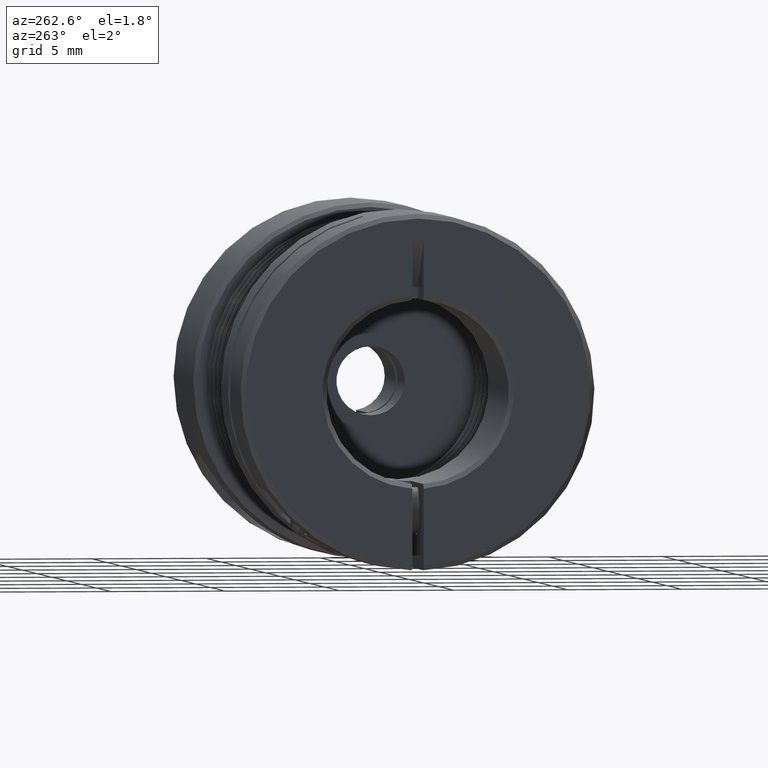
[diagram: clean part render]
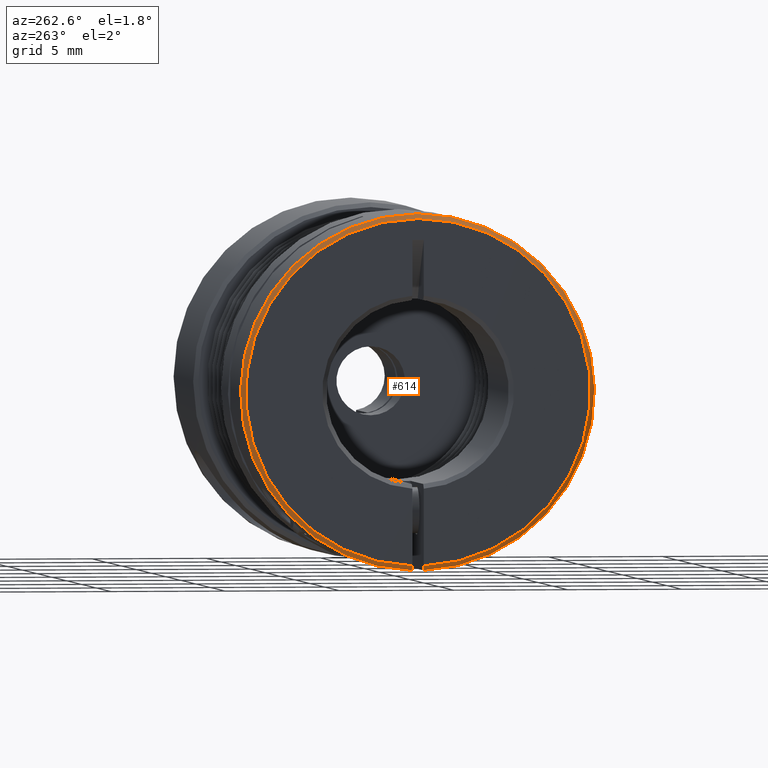
[diagram: same view with one face highlighted and labeled with its STEP entity id]
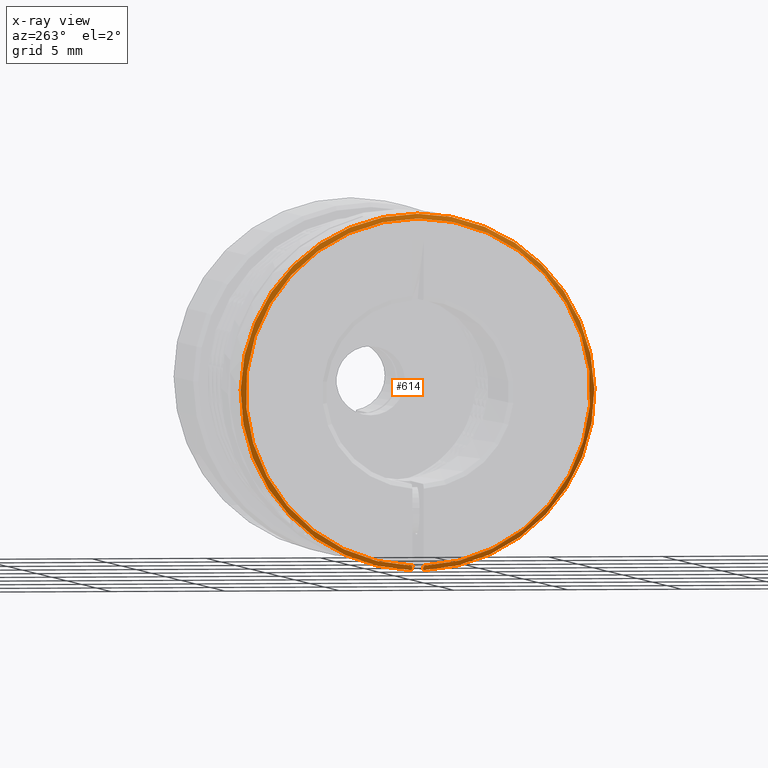
[diagram: x-ray of the same camera — body ghosted, the highlighted face saturated]
A machine part, auxiliary view. The second image highlights one B-rep face of the part: STEP entity #614.
The next image is the same camera in x-ray: the body ghosted, the highlighted face saturated — about 0% of this face is hidden behind the body in this view.
In plain terms, the highlighted conical surface has half-angle 45 deg.
Its self-contained STEP definition (entity closure, byte-faithful):
#123 = CARTESIAN_POINT ( 'NONE',  ( -0.9002624853077725309, -0.009842519685039373412, -0.3023332618965798857 ) ) ;
#212 = CARTESIAN_POINT ( 'NONE',  ( -0.8976377952755906220, -0.009842519685039328309, -0.3049593185990092103 ) ) ;
#315 = VERTEX_POINT ( 'NONE', #17194 ) ;
#376 = CARTESIAN_POINT ( 'NONE',  ( -0.9028871577040713525, 0.009842519685039366473, -0.2997071875673073538 ) ) ;
#614 = ADVANCED_FACE ( 'NONE', ( #2235 ), #8463, .T. ) ;
#1118 = CARTESIAN_POINT ( 'NONE',  ( -0.9055118110236221041, -0.009842519685039375146, -0.2970810941718658449 ) ) ;
#1274 = DIRECTION ( 'NONE',  ( 1.000000000000000000, 2.775557561562892584E-17, -1.550701171185240690E-17 ) ) ;
#1345 = ORIENTED_EDGE ( 'NONE', *, *, #2289, .T. ) ;
#1689 = CARTESIAN_POINT ( 'NONE',  ( -0.9028871577040713525, -0.009842519685039375146, -0.2997071875673073538 ) ) ;
#2103 = AXIS2_PLACEMENT_3D ( 'NONE', #5607, #15073, #7084 ) ;
#2185 = ORIENTED_EDGE ( 'NONE', *, *, #4774, .T. ) ;
#2235 = FACE_OUTER_BOUND ( 'NONE', #4315, .T. ) ;
#2289 = EDGE_CURVE ( 'NONE', #4445, #17354, #19413, .T. ) ;
#2947 = CARTESIAN_POINT ( 'NONE',  ( -0.9055118110236221041, -2.513300154171123172E-17, 1.404178225876399205E-17 ) ) ;
#3324 = DIRECTION ( 'NONE',  ( 1.000000000000000000, 2.775557561562892584E-17, -1.550701171185240690E-17 ) ) ;
#4315 = EDGE_LOOP ( 'NONE', ( #1345, #2185, #10178, #15709, #10748 ) ) ;
#4445 = VERTEX_POINT ( 'NONE', #8350 ) ;
#4492 = AXIS2_PLACEMENT_3D ( 'NONE', #15455, #18811, #8818 ) ;
#4774 = EDGE_CURVE ( 'NONE', #17354, #16888, #6594, .T. ) ;
#4992 = CARTESIAN_POINT ( 'NONE',  ( -0.9002624853077725309, 0.009842519685039368207, -0.3023332618965798857 ) ) ;
#5607 = CARTESIAN_POINT ( 'NONE',  ( -0.8976377952755906220, -2.491445370221809414E-17, 1.391967980433995645E-17 ) ) ;
#6016 = EDGE_CURVE ( 'NONE', #315, #4445, #20145, .T. ) ;
#6594 = B_SPLINE_CURVE_WITH_KNOTS ( 'NONE', 3,
 ( #16100, #1689, #123, #13044 ),
 .UNSPECIFIED., .F., .F.,
 ( 4, 4 ),
 ( 0.0000000000000000000, 0.0002829183126053914465 ),
 .UNSPECIFIED. ) ;
#7084 = DIRECTION ( 'NONE',  ( 0.0000000000000000000, 7.427073164652317819E-17, -1.000000000000000000 ) ) ;
#8235 = CARTESIAN_POINT ( 'NONE',  ( -0.8976377952755906220, 0.009842519685039359534, -0.3049593185990092103 ) ) ;
#8350 = CARTESIAN_POINT ( 'NONE',  ( -0.9055118110236221041, 0.009842519685039366473, -0.2970810941718658449 ) ) ;
#8463 = CONICAL_SURFACE ( 'NONE', #2103, 0.3051181102362204856, 0.7853981633974504994 ) ;
#8818 = DIRECTION ( 'NONE',  ( 0.0000000000000000000, -7.427073164652317819E-17, 1.000000000000000000 ) ) ;
#9237 = CARTESIAN_POINT ( 'NONE',  ( -0.8976377952755906220, -4.396975963642986873E-17, 0.3051181102362204856 ) ) ;
#9947 = DIRECTION ( 'NONE',  ( 0.0000000000000000000, -7.427073164652317819E-17, 1.000000000000000000 ) ) ;
#10178 = ORIENTED_EDGE ( 'NONE', *, *, #15698, .F. ) ;
#10748 = ORIENTED_EDGE ( 'NONE', *, *, #6016, .T. ) ;
#12452 = AXIS2_PLACEMENT_3D ( 'NONE', #14680, #3324, #9947 ) ;
#13044 = CARTESIAN_POINT ( 'NONE',  ( -0.8976377952755906220, -0.009842519685039328309, -0.3049593185990092103 ) ) ;
#13567 = CIRCLE ( 'NONE', #4492, 0.3051181102362204856 ) ;
#14091 = DIRECTION ( 'NONE',  ( 0.0000000000000000000, 7.427073164652317819E-17, -1.000000000000000000 ) ) ;
#14680 = CARTESIAN_POINT ( 'NONE',  ( -0.8976377952755906220, -2.491445370221809414E-17, 1.391967980433995645E-17 ) ) ;
#15073 = DIRECTION ( 'NONE',  ( 1.000000000000000000, 2.775557561562892584E-17, -1.550701171185240690E-17 ) ) ;
#15455 = CARTESIAN_POINT ( 'NONE',  ( -0.8976377952755906220, -2.491445370221809414E-17, 1.391967980433995645E-17 ) ) ;
#15698 = EDGE_CURVE ( 'NONE', #19121, #16888, #18500, .T. ) ;
#15709 = ORIENTED_EDGE ( 'NONE', *, *, #17868, .F. ) ;
#16062 = AXIS2_PLACEMENT_3D ( 'NONE', #2947, #1274, #14091 ) ;
#16100 = CARTESIAN_POINT ( 'NONE',  ( -0.9055118110236221041, -0.009842519685039375146, -0.2970810941718658449 ) ) ;
#16888 = VERTEX_POINT ( 'NONE', #212 ) ;
#17194 = CARTESIAN_POINT ( 'NONE',  ( -0.8976377952755906220, 0.009842519685039359534, -0.3049593185990092103 ) ) ;
#17354 = VERTEX_POINT ( 'NONE', #1118 ) ;
#17868 = EDGE_CURVE ( 'NONE', #315, #19121, #13567, .T. ) ;
#18500 = CIRCLE ( 'NONE', #12452, 0.3051181102362204856 ) ;
#18811 = DIRECTION ( 'NONE',  ( 1.000000000000000000, 2.775557561562892584E-17, -1.550701171185240690E-17 ) ) ;
#19121 = VERTEX_POINT ( 'NONE', #9237 ) ;
#19283 = CARTESIAN_POINT ( 'NONE',  ( -0.9055118110236221041, 0.009842519685039366473, -0.2970810941718658449 ) ) ;
#19413 = CIRCLE ( 'NONE', #16062, 0.2972440944881890035 ) ;
#20145 = B_SPLINE_CURVE_WITH_KNOTS ( 'NONE', 3,
 ( #8235, #4992, #376, #19283 ),
 .UNSPECIFIED., .F., .F.,
 ( 4, 4 ),
 ( 0.0000000000000000000, 0.0002829183126053914465 ),
 .UNSPECIFIED. ) ;